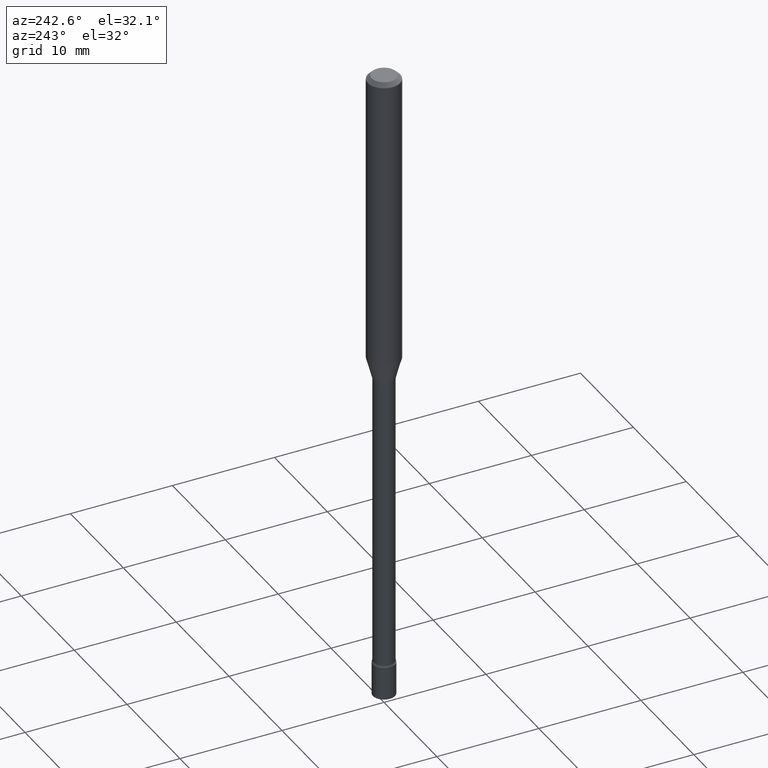
[diagram: clean part render]
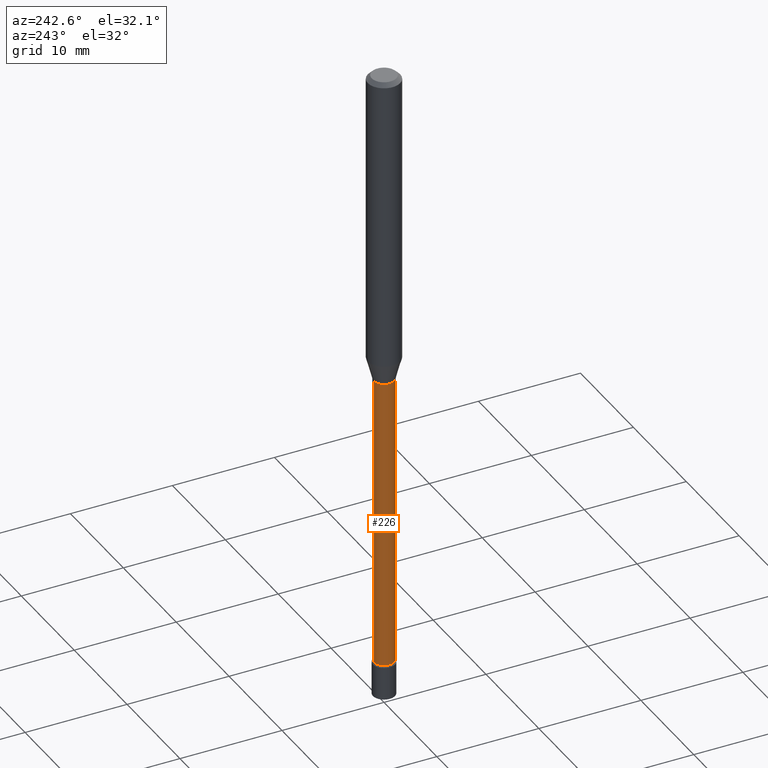
[diagram: same view with one face highlighted and labeled with its STEP entity id]
A machine part, auxiliary view. The second image highlights one B-rep face of the part: STEP entity #226.
In plain terms, the highlighted cylindrical surface (edge-blend (fillet) strip) has radius 1.0147 mm, axis along (-0, 0, 1).
Its self-contained STEP definition (entity closure, byte-faithful):
#35 = VERTEX_POINT ( 'NONE', #172 ) ;
#60 = CARTESIAN_POINT ( 'NONE',  ( 3.000579124045969393E-29, -4.283887175554402762E-15, -1.226974787463810834 ) ) ;
#77 = DIRECTION ( 'NONE',  ( -2.445510009417752307E-29, 3.491422333468896927E-15, 1.000000000000000000 ) ) ;
#80 = ORIENTED_EDGE ( 'NONE', *, *, #402, .T. ) ;
#87 = DIRECTION ( 'NONE',  ( -2.445510009417752588E-29, 3.491422333468897321E-15, 1.000000000000000000 ) ) ;
#105 = VECTOR ( 'NONE', #479, 39.37007874015748143 ) ;
#129 = CARTESIAN_POINT ( 'NONE',  ( 2.929212428171595135E-16, 0.03994999999999183926, -2.363633549139569912 ) ) ;
#132 = DIRECTION ( 'NONE',  ( -2.445510009417752588E-29, 3.491422333468897321E-15, 1.000000000000000000 ) ) ;
#172 = CARTESIAN_POINT ( 'NONE',  ( 2.838618229362181985E-16, 0.03994999999999571810, -1.226974787463811056 ) ) ;
#177 = EDGE_CURVE ( 'NONE', #381, #391, #327, .T. ) ;
#182 = FACE_OUTER_BOUND ( 'NONE', #237, .T. ) ;
#190 = EDGE_CURVE ( 'NONE', #35, #366, #432, .T. ) ;
#211 = DIRECTION ( 'NONE',  ( -6.982962677686265922E-15, -1.000000000000000000, 3.491422333468897716E-15 ) ) ;
#220 = CARTESIAN_POINT ( 'NONE',  ( 5.780289503016424923E-29, -8.252442961602247403E-15, -2.363633549139569467 ) ) ;
#226 = ADVANCED_FACE ( 'NONE', ( #182 ), #339, .T. ) ;
#232 = ORIENTED_EDGE ( 'NONE', *, *, #177, .T. ) ;
#237 = EDGE_LOOP ( 'NONE', ( #261, #232, #80, #408 ) ) ;
#245 = CARTESIAN_POINT ( 'NONE',  ( -2.789693589735666734E-16, -0.03995000000000004797, 1.394823222220826282E-16 ) ) ;
#252 = AXIS2_PLACEMENT_3D ( 'NONE', #259, #485, #211 ) ;
#259 = CARTESIAN_POINT ( 'NONE',  ( 0.000000000000000000, 0.000000000000000000, 0.000000000000000000 ) ) ;
#261 = ORIENTED_EDGE ( 'NONE', *, *, #377, .F. ) ;
#290 = LINE ( 'NONE', #331, #416 ) ;
#327 = CIRCLE ( 'NONE', #396, 0.03995000000000008961 ) ;
#331 = CARTESIAN_POINT ( 'NONE',  ( 2.838618229361603158E-16, 0.03995000000000004797, -1.394823222220826282E-16 ) ) ;
#339 = CYLINDRICAL_SURFACE ( 'NONE', #252, 0.03995000000000004797 ) ;
#359 = LINE ( 'NONE', #245, #105 ) ;
#366 = VERTEX_POINT ( 'NONE', #489 ) ;
#374 = DIRECTION ( 'NONE',  ( -6.982962677686265133E-15, -1.000000000000000000, 3.419083846888939697E-15 ) ) ;
#377 = EDGE_CURVE ( 'NONE', #381, #35, #290, .T. ) ;
#381 = VERTEX_POINT ( 'NONE', #129 ) ;
#391 = VERTEX_POINT ( 'NONE', #412 ) ;
#396 = AXIS2_PLACEMENT_3D ( 'NONE', #220, #87, #497 ) ;
#402 = EDGE_CURVE ( 'NONE', #391, #366, #359, .T. ) ;
#408 = ORIENTED_EDGE ( 'NONE', *, *, #190, .F. ) ;
#412 = CARTESIAN_POINT ( 'NONE',  ( -2.789693589735091358E-16, -0.03995000000000834689, -2.363633549139569023 ) ) ;
#416 = VECTOR ( 'NONE', #77, 39.37007874015748143 ) ;
#432 = CIRCLE ( 'NONE', #470, 0.03995000000000000634 ) ;
#470 = AXIS2_PLACEMENT_3D ( 'NONE', #60, #132, #374 ) ;
#479 = DIRECTION ( 'NONE',  ( -2.445510009417752307E-29, 3.491422333468896927E-15, 1.000000000000000000 ) ) ;
#485 = DIRECTION ( 'NONE',  ( -2.445510009417752588E-29, 3.491422333468897321E-15, 1.000000000000000000 ) ) ;
#489 = CARTESIAN_POINT ( 'NONE',  ( -2.789693589735363022E-16, -0.03995000000000429458, -1.226974787463810834 ) ) ;
#497 = DIRECTION ( 'NONE',  ( -6.982962677686266711E-15, -1.000000000000000000, 6.838167693777865194E-15 ) ) ;